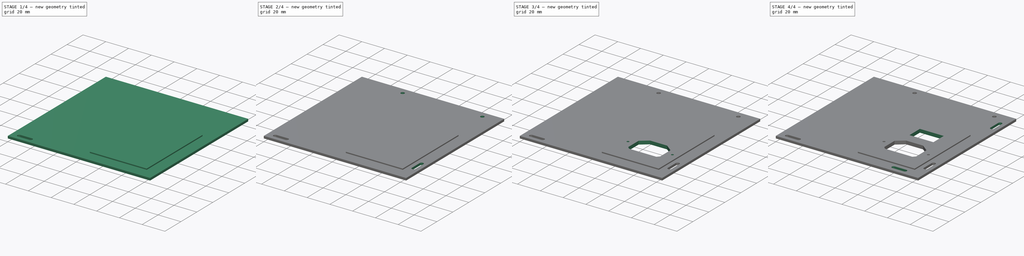
[diagram: build sequence overview — one tinted view per stage of 4, left to right]
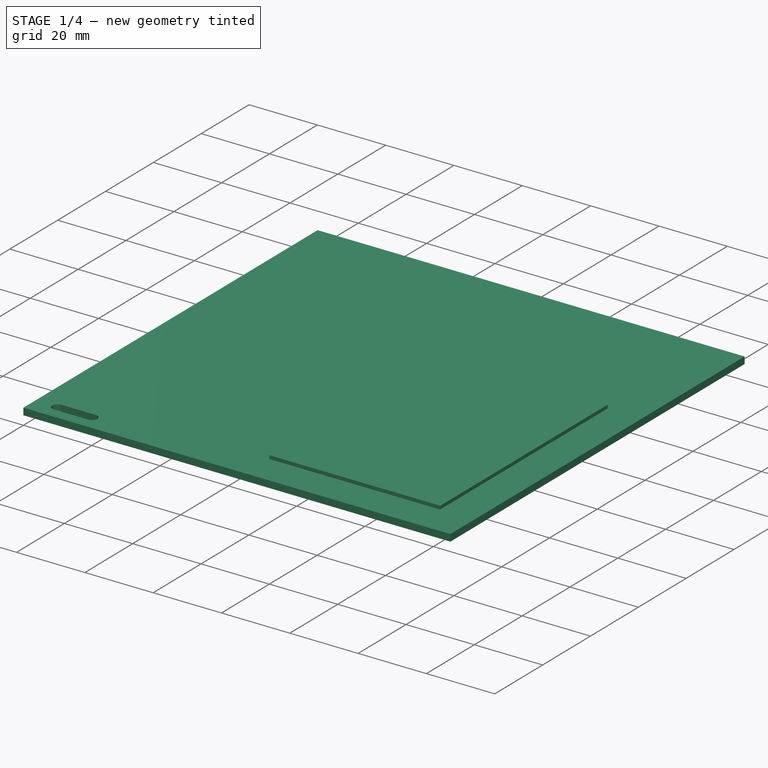
[diagram: stage 1 of 4 — iso view after this stage's code; geometry added in this stage tinted green]
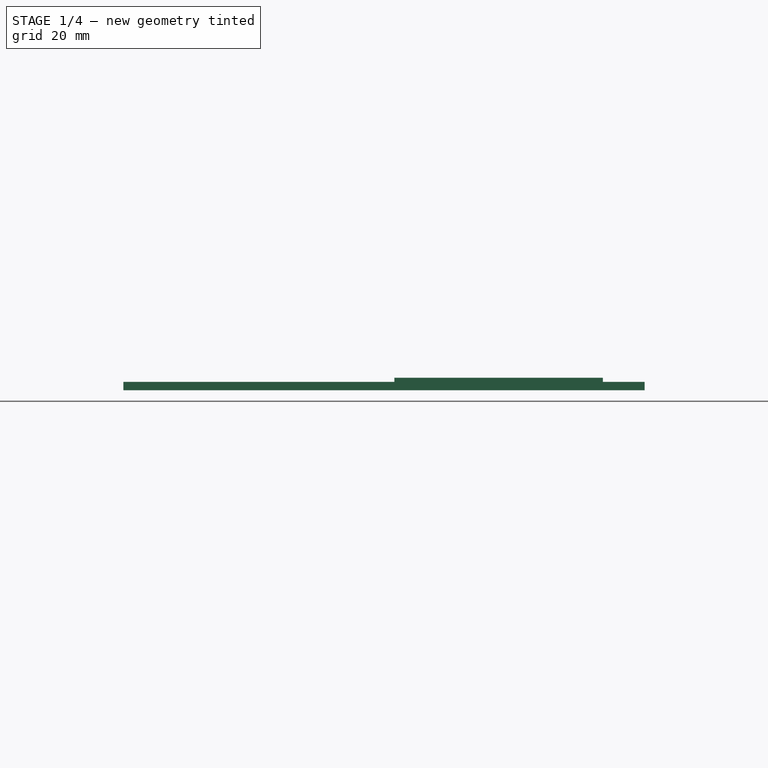
[diagram: stage 1 of 4 — front view after this stage's code; geometry added in this stage tinted green]
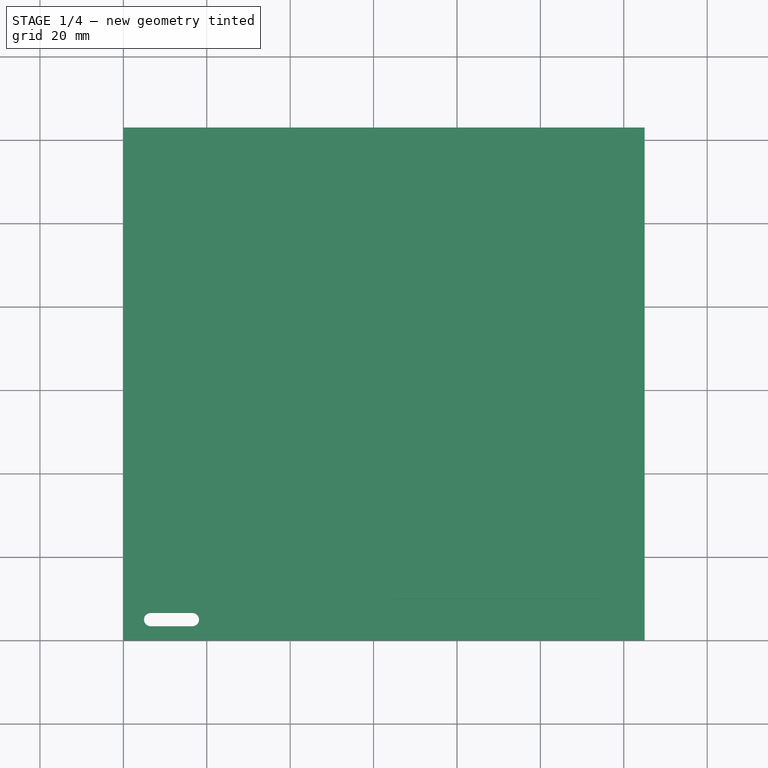
[diagram: stage 1 of 4 — top view after this stage's code; geometry added in this stage tinted green]
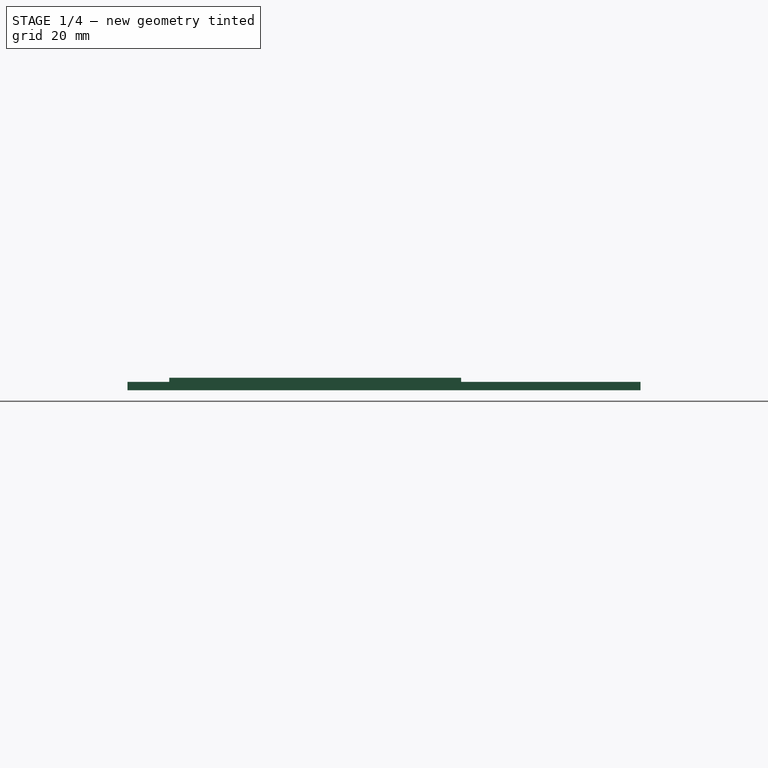
[diagram: stage 1 of 4 — right view after this stage's code; geometry added in this stage tinted green]
FCSTD DOCUMENT  (FreeCAD 0.17R13541 (Git))
Label: psBackPannel
License: All rights reserved
LicenseURL: http://en.wikipedia.org/wiki/All_rights_reserved
objects: Sketcher::SketchObject×12, PartDesign::Pocket×10, PartDesign::Pad×2, PartDesign::Body×1
note: 37 computed .brp shape members not serialized (recipe doc carries the construction recipe); baked Part::Feature solids carry a one-line shape summary decoded from their .brp

FEATURE [Sketcher::SketchObject] Sketch
  MapMode = 5
  Support = -> [XY_Plane]
  sketch-geometry (4):
    g0: LineSegment StartX=125 StartY=123 StartZ=0 EndX=0 EndY=123 EndZ=0
    g1: LineSegment StartX=0 StartY=123 StartZ=0 EndX=0 EndY=0 EndZ=0
    g2: LineSegment StartX=0 StartY=0 StartZ=0 EndX=125 EndY=0 EndZ=0
    g3: LineSegment StartX=125 StartY=0 StartZ=0 EndX=125 EndY=123 EndZ=0
  constraints (12):
    c: Coincident(g0,g1)
    c: Coincident(g1,g2)
    c: Coincident(g2,g3)
    c: Coincident(g3,g0)
    c: Horizontal(g0)
    c: Horizontal(g2)
    c: Vertical(g1)
    c: Vertical(g3)
    c: Distance(g0) = 125
    c: Distance(g1) = 123
    c: DistanceX(g1) = 0
    c: DistanceY(g1) = 0
FEATURE [PartDesign::Pad] Pad
  Length = 2
  Length2 = 100
  Profile = -> Sketch
  Type = 0
FEATURE [Sketcher::SketchObject] Sketch001
  MapMode = 5
  Support = -> [XY_Plane]
  sketch-geometry (4):
    g0: LineSegment StartX=115 StartY=10 StartZ=0 EndX=65 EndY=10 EndZ=0
    g1: LineSegment StartX=65 StartY=10 StartZ=0 EndX=65 EndY=80 EndZ=0
    g2: LineSegment StartX=65 StartY=80 StartZ=0 EndX=115 EndY=80 EndZ=0
    g3: LineSegment StartX=115 StartY=80 StartZ=0 EndX=115 EndY=10 EndZ=0
  constraints (12):
    c: Coincident(g0,g1)
    c: Coincident(g1,g2)
    c: Coincident(g2,g3)
    c: Coincident(g3,g0)
    c: Horizontal(g0)
    c: Horizontal(g2)
    c: Vertical(g1)
    c: Vertical(g3)
    c: Distance(g0) = 50
    c: Distance(g1) = 70
    c: DistanceX(g0) = 115
    c: DistanceY(g0) = 10
FEATURE [PartDesign::Pad] Pad001
  BaseFeature = -> Pad
  Length = 3
  Length2 = 100
  Profile = -> Sketch001
  Type = 0
FEATURE [Sketcher::SketchObject] Sketch002
  MapMode = 5
  Support = -> [XY_Plane]
  sketch-geometry (4):
    g0: ArcOfCircle CenterX=6.55 CenterY=5 CenterZ=0 NormalX=0 NormalY=0 NormalZ=1 AngleXU=0 Radius=1.6 StartAngle=1.5708 EndAngle=4.71239
    g1: ArcOfCircle CenterX=16.55 CenterY=5 CenterZ=0 NormalX=0 NormalY=0 NormalZ=1 AngleXU=0 Radius=1.6 StartAngle=4.71239 EndAngle=7.85398
    g2: LineSegment StartX=6.55 StartY=3.4 StartZ=0 EndX=16.55 EndY=3.4 EndZ=0
    g3: LineSegment StartX=6.55 StartY=6.6 StartZ=0 EndX=16.55 EndY=6.6 EndZ=0
  constraints (10):
    c: Tangent(g0,g3) = 1.5708
    c: Tangent(g0,g2) = -1.5708
    c: Tangent(g2,g1) = -1.5708
    c: Tangent(g3,g1) = 1.5708
    c: Horizontal(g2)
    c: Equal(g0,g1)
    c: Radius(g0) = 1.6
    c: DistanceX(g0) = 6.55
    c: DistanceY(g0) = 5
    c: Distance(g2) = 10
FEATURE [PartDesign::Pocket] Pocket
  BaseFeature = -> Pad001
  Length = 5
  Length2 = 100
  Profile = -> Sketch002
  Reversed = true
  Type = 1
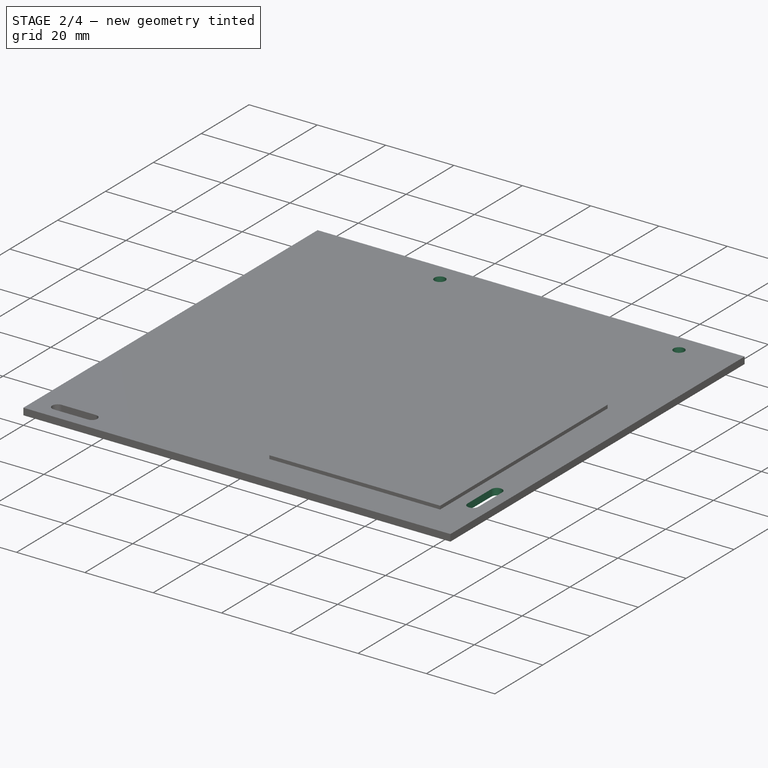
[diagram: stage 2 of 4 — iso view after this stage's code; geometry added in this stage tinted green]
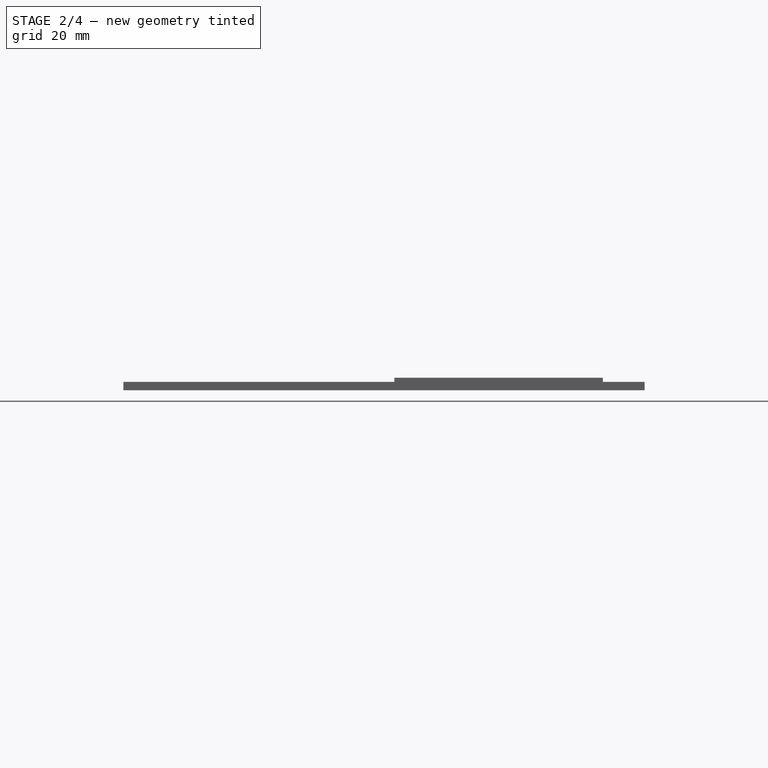
[diagram: stage 2 of 4 — front view after this stage's code; geometry added in this stage tinted green]
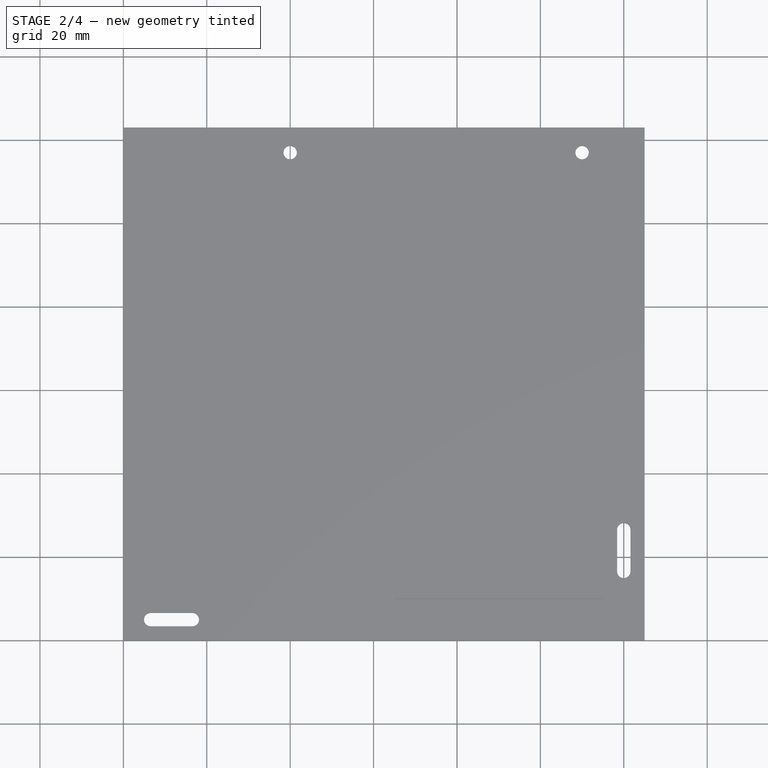
[diagram: stage 2 of 4 — top view after this stage's code; geometry added in this stage tinted green]
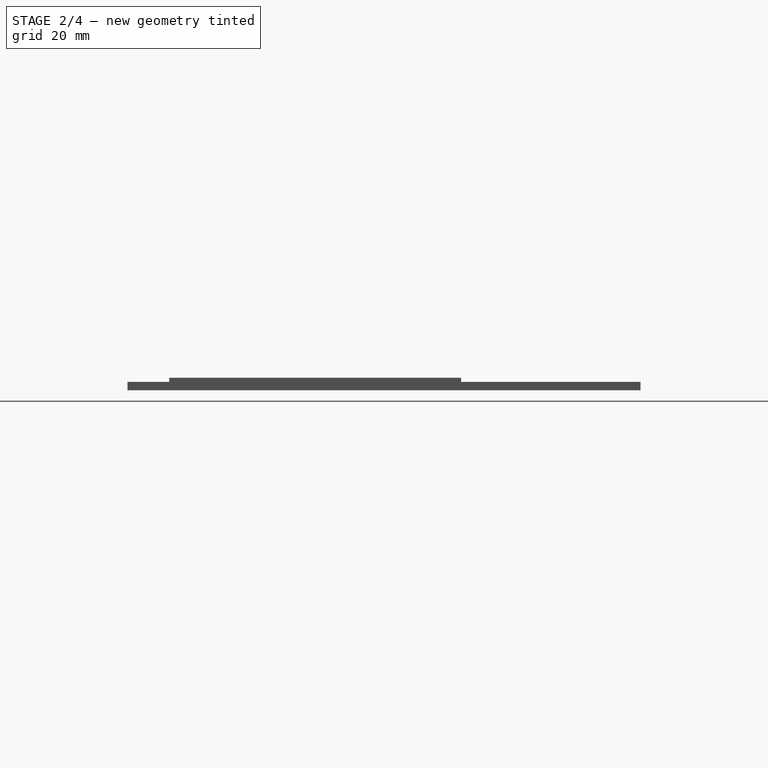
[diagram: stage 2 of 4 — right view after this stage's code; geometry added in this stage tinted green]
FEATURE [Sketcher::SketchObject] Sketch003
  MapMode = 5
  Support = -> [XY_Plane]
  sketch-geometry (4):
    g0: ArcOfCircle CenterX=120 CenterY=26.55 CenterZ=0 NormalX=0 NormalY=0 NormalZ=1 AngleXU=0 Radius=1.6 StartAngle=0 EndAngle=3.14159
    g1: ArcOfCircle CenterX=120 CenterY=16.55 CenterZ=0 NormalX=0 NormalY=0 NormalZ=1 AngleXU=0 Radius=1.6 StartAngle=3.14159 EndAngle=6.28319
    g2: LineSegment StartX=118.4 StartY=26.55 StartZ=0 EndX=118.4 EndY=16.55 EndZ=0
    g3: LineSegment StartX=121.6 StartY=26.55 StartZ=0 EndX=121.6 EndY=16.55 EndZ=0
  constraints (10):
    c: Tangent(g0,g3) = 1.5708
    c: Tangent(g0,g2) = -1.5708
    c: Tangent(g2,g1) = -1.5708
    c: Tangent(g3,g1) = 1.5708
    c: Vertical(g2)
    c: Equal(g0,g1)
    c: Radius(g0) = 1.6
    c: DistanceX(g1) = 120
    c: DistanceY(g1) = 16.55
    c: Distance(g2) = 10
FEATURE [PartDesign::Pocket] Pocket001
  BaseFeature = -> Pocket
  Length = 5
  Length2 = 100
  Profile = -> Sketch003
  Reversed = true
  Type = 1
FEATURE [Sketcher::SketchObject] Sketch004
  MapMode = 5
  Support = -> [XY_Plane]
  sketch-geometry (1):
    g0: Circle CenterX=110 CenterY=117 CenterZ=0 NormalX=0 NormalY=0 NormalZ=1 AngleXU=0 Radius=1.6
  constraints (3):
    c: Radius(g0) = 1.6
    c: DistanceX(g0) = 110
    c: DistanceY(g0) = 117
FEATURE [PartDesign::Pocket] Pocket002
  BaseFeature = -> Pocket001
  Length = 5
  Length2 = 100
  Profile = -> Sketch004
  Reversed = true
  Type = 1
FEATURE [Sketcher::SketchObject] Sketch005
  MapMode = 5
  Support = -> [XY_Plane]
  sketch-geometry (1):
    g0: Circle CenterX=40 CenterY=117 CenterZ=0 NormalX=0 NormalY=0 NormalZ=1 AngleXU=0 Radius=1.6
  constraints (3):
    c: Radius(g0) = 1.6
    c: DistanceX(g0) = 40
    c: DistanceY(g0) = 117
FEATURE [PartDesign::Pocket] Pocket003
  BaseFeature = -> Pocket002
  Length = 5
  Length2 = 100
  Profile = -> Sketch005
  Reversed = true
  Type = 1
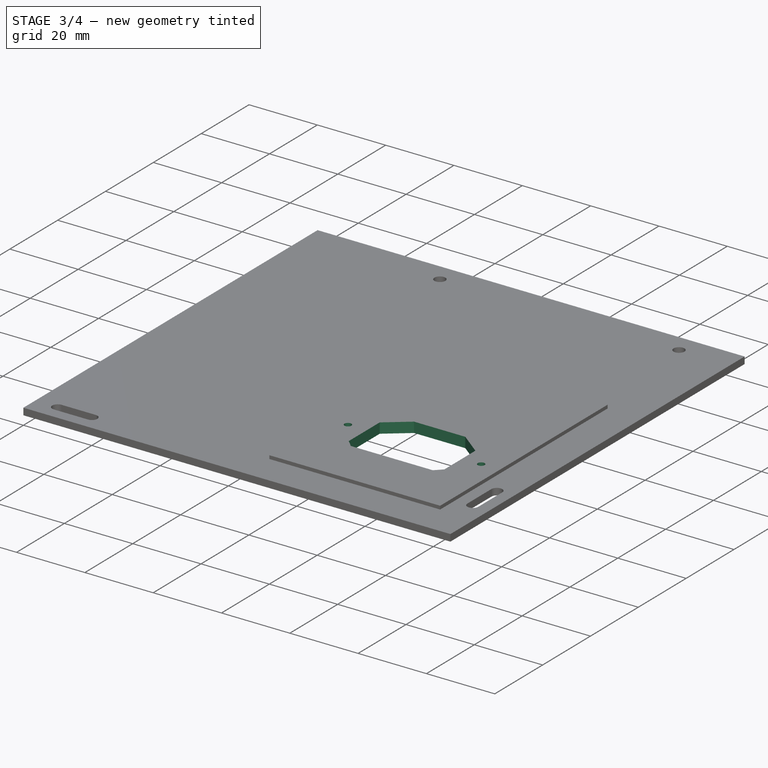
[diagram: stage 3 of 4 — iso view after this stage's code; geometry added in this stage tinted green]
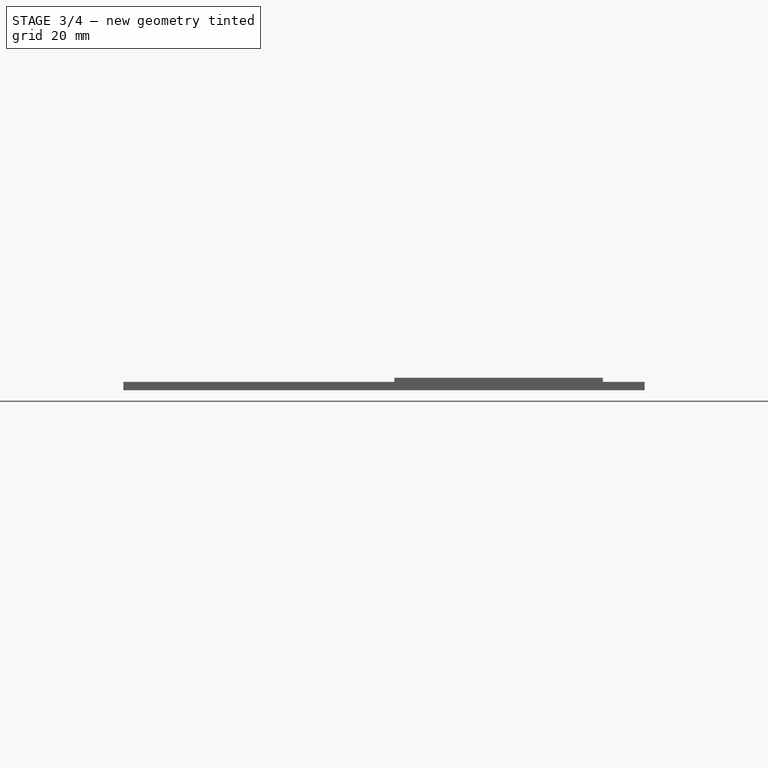
[diagram: stage 3 of 4 — front view after this stage's code; geometry added in this stage tinted green]
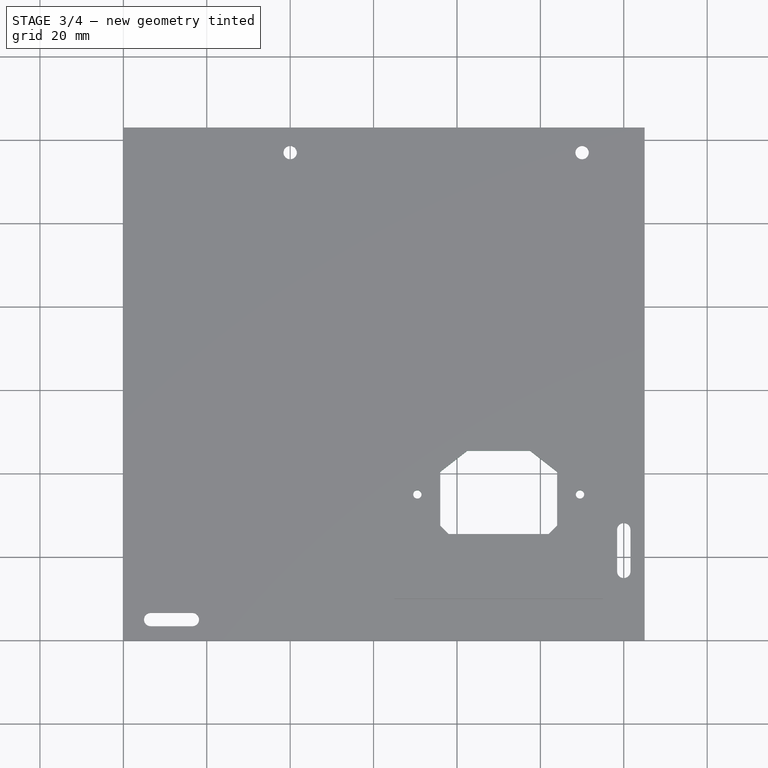
[diagram: stage 3 of 4 — top view after this stage's code; geometry added in this stage tinted green]
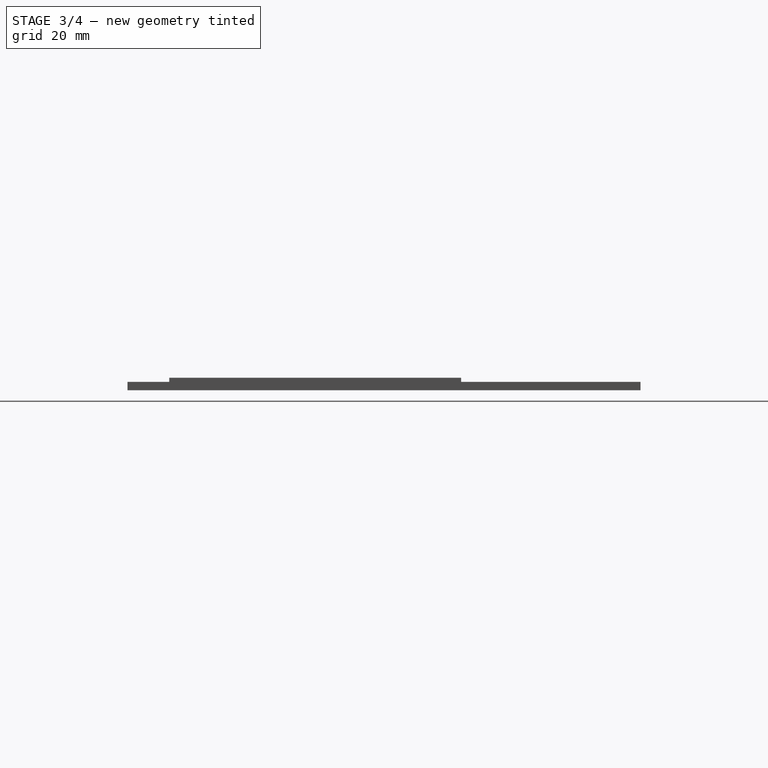
[diagram: stage 3 of 4 — right view after this stage's code; geometry added in this stage tinted green]
FEATURE [Sketcher::SketchObject] Sketch006
  MapMode = 5
  Support = -> [XY_Plane]
  sketch-geometry (29):
    g0: LineSegment [constr] StartX=65 StartY=10 StartZ=0 EndX=115 EndY=10 EndZ=0
    g1: LineSegment [constr] StartX=115 StartY=10 StartZ=0 EndX=115 EndY=60 EndZ=0
    g2: LineSegment [constr] StartX=115 StartY=60 StartZ=0 EndX=65 EndY=60 EndZ=0
    g3: LineSegment [constr] StartX=65 StartY=60 StartZ=0 EndX=65 EndY=10 EndZ=0
    g4: LineSegment [constr] StartX=65 StartY=35 StartZ=0 EndX=115 EndY=35 EndZ=0
    g5: LineSegment [constr] StartX=90 StartY=60 StartZ=0 EndX=90 EndY=10 EndZ=0
    g6: LineSegment [constr] StartX=65 StartY=25.5 StartZ=0 EndX=115 EndY=25.5 EndZ=0
    g7: LineSegment [constr] StartX=65 StartY=45.5 StartZ=0 EndX=115 EndY=45.5 EndZ=0
    g8: LineSegment [constr] StartX=76 StartY=45.5 StartZ=0 EndX=76 EndY=25.5 EndZ=0
    g9: LineSegment [constr] StartX=104 StartY=45.5 StartZ=0 EndX=104 EndY=25.5 EndZ=0
    g10: LineSegment [constr] StartX=82.5 StartY=45.5 StartZ=0 EndX=82.5 EndY=25.5 EndZ=0
    g11: LineSegment [constr] StartX=97.5 StartY=25.5 StartZ=0 EndX=97.5 EndY=45.5 EndZ=0
    g12: LineSegment [constr] StartX=65 StartY=40.5 StartZ=0 EndX=115 EndY=40.5 EndZ=0
    g13: LineSegment StartX=76 StartY=40.4337 StartZ=0 EndX=82.5 EndY=45.5 EndZ=0
    g14: LineSegment StartX=82.5 StartY=45.5 StartZ=0 EndX=97.5 EndY=45.5 EndZ=0
    g15: LineSegment StartX=97.5 StartY=45.5 StartZ=0 EndX=104 EndY=40.4359 EndZ=0
    g16: LineSegment [constr] StartX=76 StartY=25.5 StartZ=0 EndX=78 EndY=25.5 EndZ=0
    g17: LineSegment [constr] StartX=78 StartY=25.5 StartZ=0 EndX=78 EndY=27.5 EndZ=0
    g18: LineSegment [constr] StartX=78 StartY=27.5 StartZ=0 EndX=76 EndY=27.5 EndZ=0
    g19: LineSegment [constr] StartX=76 StartY=27.5 StartZ=0 EndX=76 EndY=25.5 EndZ=0
    g20: LineSegment [constr] StartX=104 StartY=25.5 StartZ=0 EndX=102 EndY=25.5 EndZ=0
    g21: LineSegment [constr] StartX=102 StartY=25.5 StartZ=0 EndX=102 EndY=27.5 EndZ=0
    g22: LineSegment [constr] StartX=102 StartY=27.5 StartZ=0 EndX=104 EndY=27.5 EndZ=0
    g23: LineSegment [constr] StartX=104 StartY=27.5 StartZ=0 EndX=104 EndY=25.5 EndZ=0
    g24: LineSegment StartX=76 StartY=40.4337 StartZ=0 EndX=76 EndY=27.5 EndZ=0
    g25: LineSegment StartX=104 StartY=27.5 StartZ=0 EndX=102 EndY=25.5 EndZ=0
    g26: LineSegment StartX=104 StartY=40.4359 StartZ=0 EndX=104 EndY=27.5 EndZ=0
    g27: LineSegment StartX=102 StartY=25.5 StartZ=0 EndX=78 EndY=25.5 EndZ=0
    g28: LineSegment StartX=76 StartY=27.5 StartZ=0 EndX=78 EndY=25.5 EndZ=0
  constraints (86):
    c: Coincident(g0,g1)
    c: Coincident(g1,g2)
    c: Coincident(g2,g3)
    c: Coincident(g3,g0)
    c: Horizontal(g0)
    c: Horizontal(g2)
    c: Vertical(g1)
    c: Vertical(g3)
    c: Distance(g0) = 50
    c: Distance(g1) = 50
    c: DistanceX(g0) = 115
    c: DistanceY(g0) = 10
    c: Horizontal(g4)
    c: DistanceX(g4) = 115
    c: DistanceY(g4) = 35
    c: Vertical(g5)
    c: DistanceX(g5) = 90
    c: DistanceY(g5) = 10
    c: Distance(g5) = 50
    c: Horizontal(g6)
    c: Distance(g6) = 50
    c: DistanceX(g6) = 115
    c: DistanceY(g6) = 25.5
    c: Horizontal(g7)
    c: Distance(g7) = 50
    c: DistanceX(g7) = 115
    c: DistanceY(g7) = 45.5
    c: Vertical(g8)
    c: DistanceX(g8) = 76
    c: DistanceY(g8) = 25.5
    c: DistanceY(g8) = 45.5
    c: Vertical(g9)
    c: DistanceX(g9) = 104
    c: DistanceY(g9) = 25.5
    c: Distance(g9) = 20
    c: Vertical(g10)
    c: DistanceX(g10) = 82.5
    c: DistanceY(g10) = 25.5
    c: Distance(g10) = 20
    c: Vertical(g11)
    c: DistanceX(g11) = 97.5
    c: DistanceY(g11) = 25.5
    c: Distance(g11) = 20
    c: Horizontal(g12)
    c: Distance(g12) = 50
    c: DistanceX(g12) = 65
    c: DistanceY(g12) = 40.5
    c: PointOnObject(g13,g8)
    c: Coincident(g14,g10)
    c: Coincident(g14,g11)
    c: PointOnObject(g15,g9)
    c: Coincident(g15,g11)
    c: Coincident(g16,g17)
    c: Coincident(g17,g18)
    c: Coincident(g18,g19)
    c: Coincident(g19,g16)
    c: Horizontal(g16)
    c: Horizontal(g18)
    c: Vertical(g17)
    c: Vertical(g19)
    c: Distance(g18) = 2
    c: Distance(g17) = 2
    c: Coincident(g20,g21)
    c: Coincident(g21,g22)
    c: Coincident(g22,g23)
    c: Coincident(g23,g20)
    c: Horizontal(g20)
    c: Horizontal(g22)
    c: Vertical(g21)
    c: Vertical(g23)
    c: Distance(g23) = 2
    c: Distance(g20) = 2
    c: DistanceX(g16) = 76
    c: DistanceY(g16) = 25.5
    c: DistanceX(g20) = 104
    c: DistanceY(g20) = 25.5
    c: Coincident(g24,g13)
    c: Coincident(g24,g18)
    c: Coincident(g25,g22)
    c: Coincident(g25,g20)
    c: Coincident(g26,g15)
    c: Coincident(g26,g22)
    c: Coincident(g27,g20)
    c: Coincident(g27,g16)
    c: Coincident(g28,g18)
    c: Coincident(g28,g16)
FEATURE [Sketcher::SketchObject] Sketch007
  MapMode = 5
  Support = -> [XY_Plane]
  sketch-geometry (7):
    g0: LineSegment [constr] StartX=65 StartY=10 StartZ=0 EndX=115 EndY=10 EndZ=0
    g1: LineSegment [constr] StartX=115 StartY=10 StartZ=0 EndX=115 EndY=60 EndZ=0
    g2: LineSegment [constr] StartX=115 StartY=60 StartZ=0 EndX=65 EndY=60 EndZ=0
    g3: LineSegment [constr] StartX=65 StartY=60 StartZ=0 EndX=65 EndY=10 EndZ=0
    g4: LineSegment [constr] StartX=65 StartY=35 StartZ=0 EndX=115 EndY=35 EndZ=0
    g5: LineSegment [constr] StartX=90 StartY=60 StartZ=0 EndX=90 EndY=10 EndZ=0
    g6: Circle CenterX=70.5 CenterY=35 CenterZ=0 NormalX=0 NormalY=0 NormalZ=1 AngleXU=0 Radius=1
  constraints (22):
    c: Coincident(g0,g1)
    c: Coincident(g1,g2)
    c: Coincident(g2,g3)
    c: Coincident(g3,g0)
    c: Horizontal(g0)
    c: Horizontal(g2)
    c: Vertical(g1)
    c: Vertical(g3)
    c: Distance(g0) = 50
    c: Distance(g1) = 50
    c: DistanceX(g0) = 115
    c: DistanceY(g0) = 10
    c: Horizontal(g4)
    c: DistanceX(g4) = 115
    c: DistanceY(g4) = 35
    c: Vertical(g5)
    c: DistanceX(g5) = 90
    c: DistanceY(g5) = 10
    c: Distance(g5) = 50
    c: DistanceX(g6) = 70.5
    c: DistanceY(g6) = 35
    c: Radius(g6) = 1
FEATURE [Sketcher::SketchObject] Sketch008
  MapMode = 5
  Support = -> [XY_Plane]
  sketch-geometry (7):
    g0: LineSegment [constr] StartX=65 StartY=10 StartZ=0 EndX=115 EndY=10 EndZ=0
    g1: LineSegment [constr] StartX=115 StartY=10 StartZ=0 EndX=115 EndY=60 EndZ=0
    g2: LineSegment [constr] StartX=115 StartY=60 StartZ=0 EndX=65 EndY=60 EndZ=0
    g3: LineSegment [constr] StartX=65 StartY=60 StartZ=0 EndX=65 EndY=10 EndZ=0
    g4: LineSegment [constr] StartX=65 StartY=35 StartZ=0 EndX=115 EndY=35 EndZ=0
    g5: LineSegment [constr] StartX=90 StartY=60 StartZ=0 EndX=90 EndY=10 EndZ=0
    g6: Circle CenterX=109.5 CenterY=35 CenterZ=0 NormalX=0 NormalY=0 NormalZ=1 AngleXU=0 Radius=1
  constraints (22):
    c: Coincident(g0,g1)
    c: Coincident(g1,g2)
    c: Coincident(g2,g3)
    c: Coincident(g3,g0)
    c: Horizontal(g0)
    c: Horizontal(g2)
    c: Vertical(g1)
    c: Vertical(g3)
    c: Distance(g0) = 50
    c: Distance(g1) = 50
    c: DistanceX(g0) = 115
    c: DistanceY(g0) = 10
    c: Horizontal(g4)
    c: DistanceX(g4) = 115
    c: DistanceY(g4) = 35
    c: Vertical(g5)
    c: DistanceX(g5) = 90
    c: DistanceY(g5) = 10
    c: Distance(g5) = 50
    c: DistanceX(g6) = 109.5
    c: DistanceY(g6) = 35
    c: Radius(g6) = 1
FEATURE [PartDesign::Pocket] Pocket004
  BaseFeature = -> Pocket003
  Length = 5
  Length2 = 100
  Profile = -> Sketch006
  Reversed = true
  Type = 1
FEATURE [PartDesign::Pocket] Pocket005
  BaseFeature = -> Pocket004
  Length = 5
  Length2 = 100
  Profile = -> Sketch007
  Reversed = true
  Type = 1
FEATURE [PartDesign::Pocket] Pocket006
  BaseFeature = -> Pocket005
  Length = 5
  Length2 = 100
  Profile = -> Sketch008
  Reversed = true
  Type = 1
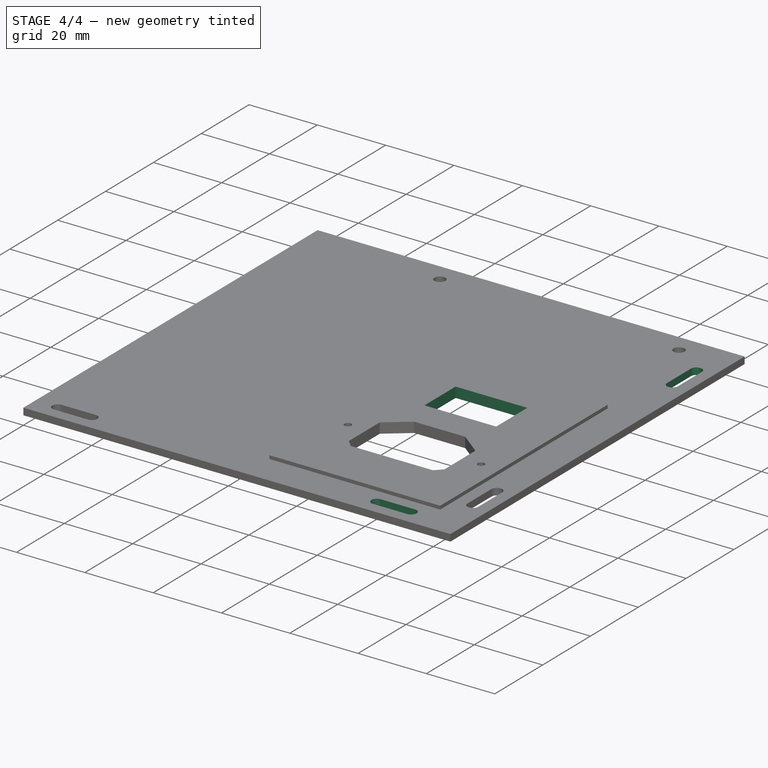
[diagram: stage 4 of 4 — iso view after this stage's code; geometry added in this stage tinted green]
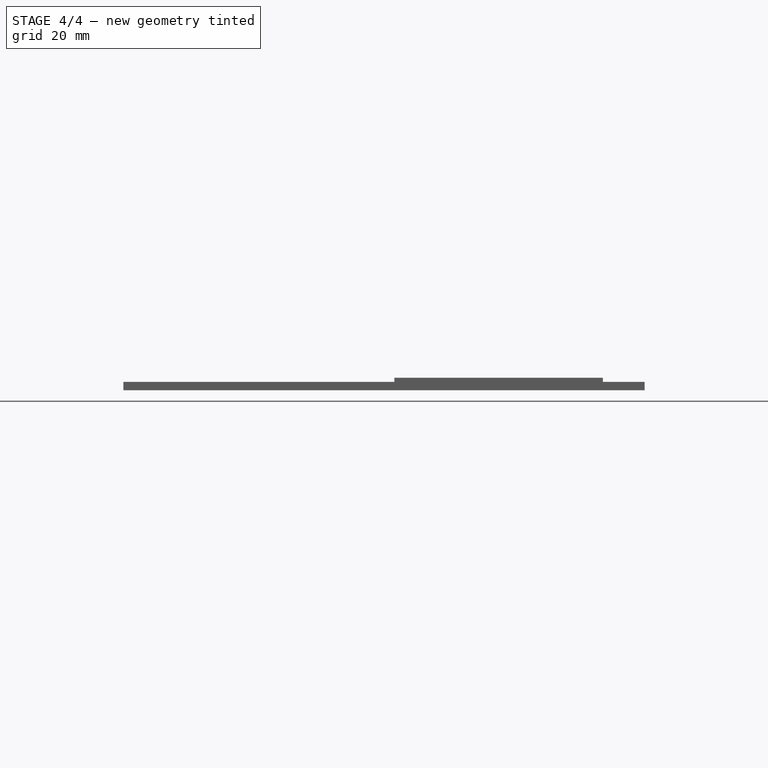
[diagram: stage 4 of 4 — front view after this stage's code; geometry added in this stage tinted green]
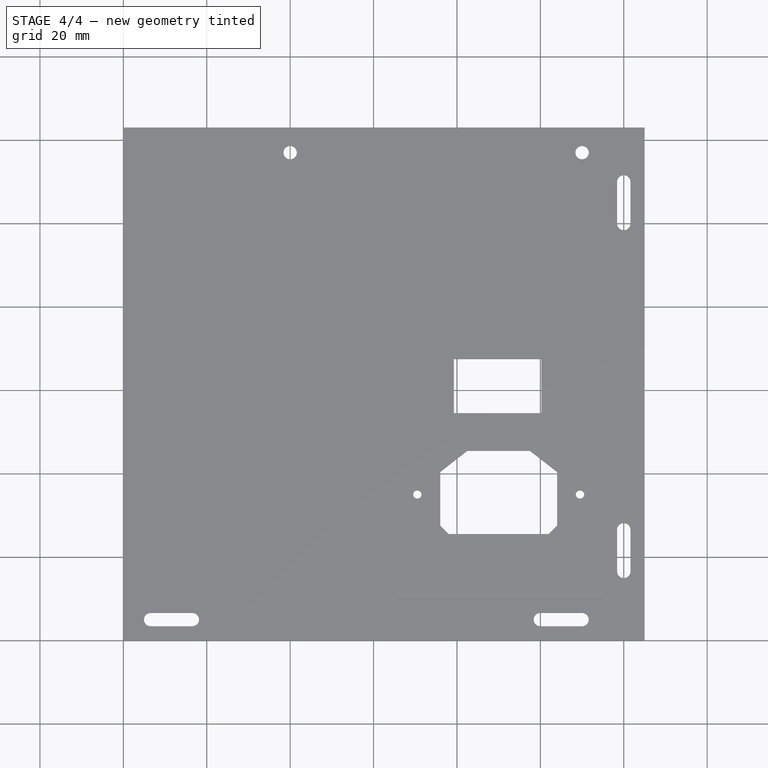
[diagram: stage 4 of 4 — top view after this stage's code; geometry added in this stage tinted green]
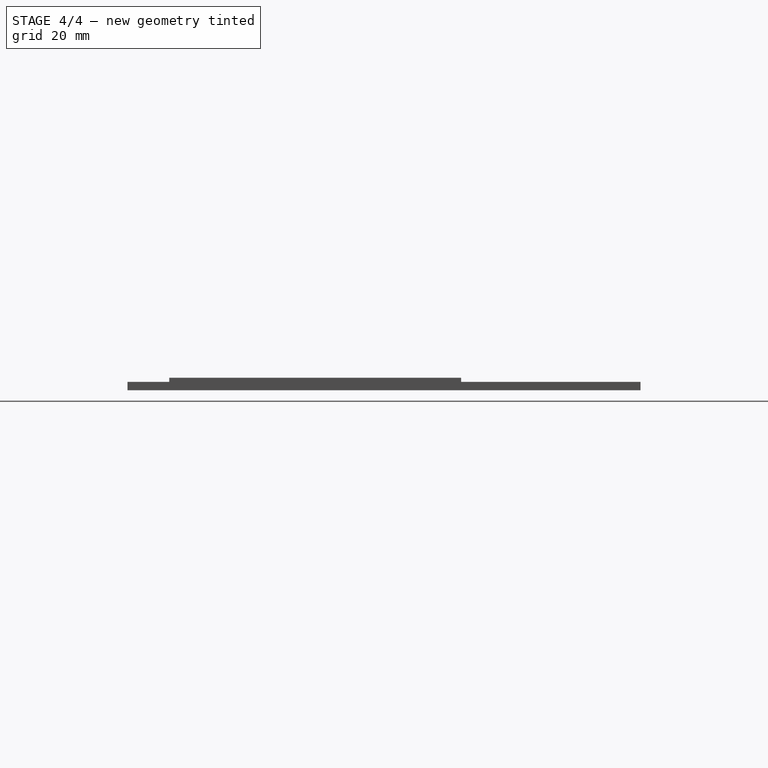
[diagram: stage 4 of 4 — right view after this stage's code; geometry added in this stage tinted green]
FEATURE [Sketcher::SketchObject] Sketch009
  MapMode = 5
  Support = -> [XY_Plane]
  sketch-geometry (10):
    g0: LineSegment [constr] StartX=65 StartY=10 StartZ=0 EndX=115 EndY=10 EndZ=0
    g1: LineSegment [constr] StartX=115 StartY=10 StartZ=0 EndX=115 EndY=60 EndZ=0
    g2: LineSegment [constr] StartX=115 StartY=60 StartZ=0 EndX=65 EndY=60 EndZ=0
    g3: LineSegment [constr] StartX=65 StartY=60 StartZ=0 EndX=65 EndY=10 EndZ=0
    g4: LineSegment [constr] StartX=65 StartY=35 StartZ=0 EndX=115 EndY=35 EndZ=0
    g5: LineSegment [constr] StartX=90 StartY=60 StartZ=0 EndX=90 EndY=10 EndZ=0
    g6: LineSegment StartX=79.25 StartY=67.5 StartZ=0 EndX=100.25 EndY=67.5 EndZ=0
    g7: LineSegment StartX=100.25 StartY=67.5 StartZ=0 EndX=100.25 EndY=54.5 EndZ=0
    g8: LineSegment StartX=100.25 StartY=54.5 StartZ=0 EndX=79.25 EndY=54.5 EndZ=0
    g9: LineSegment StartX=79.25 StartY=54.5 StartZ=0 EndX=79.25 EndY=67.5 EndZ=0
  constraints (31):
    c: Coincident(g0,g1)
    c: Coincident(g1,g2)
    c: Coincident(g2,g3)
    c: Coincident(g3,g0)
    c: Horizontal(g0)
    c: Horizontal(g2)
    c: Vertical(g1)
    c: Vertical(g3)
    c: Distance(g0) = 50
    c: Distance(g1) = 50
    c: DistanceX(g0) = 115
    c: DistanceY(g0) = 10
    c: Horizontal(g4)
    c: DistanceX(g4) = 115
    c: DistanceY(g4) = 35
    c: Vertical(g5)
    c: DistanceX(g5) = 90
    c: DistanceY(g5) = 10
    c: Distance(g5) = 50
    c: Coincident(g6,g7)
    c: Coincident(g7,g8)
    c: Coincident(g8,g9)
    c: Coincident(g9,g6)
    c: Horizontal(g6)
    c: Horizontal(g8)
    c: Vertical(g7)
    c: Vertical(g9)
    c: Distance(g9) = 13
    c: Distance(g8) = 21
    c: DistanceX(g8) = 79.25
    c: DistanceY(g8) = 54.5
FEATURE [PartDesign::Pocket] Pocket007
  BaseFeature = -> Pocket006
  Length = 5
  Length2 = 100
  Profile = -> Sketch009
  Reversed = true
  Type = 1
FEATURE [Sketcher::SketchObject] Sketch010
  MapMode = 5
  Support = -> [XY_Plane]
  sketch-geometry (4):
    g0: ArcOfCircle CenterX=100 CenterY=5 CenterZ=0 NormalX=0 NormalY=0 NormalZ=1 AngleXU=0 Radius=1.6 StartAngle=1.5708 EndAngle=4.71239
    g1: ArcOfCircle CenterX=110 CenterY=5 CenterZ=0 NormalX=0 NormalY=0 NormalZ=1 AngleXU=0 Radius=1.6 StartAngle=4.71239 EndAngle=7.85398
    g2: LineSegment StartX=100 StartY=3.4 StartZ=0 EndX=110 EndY=3.4 EndZ=0
    g3: LineSegment StartX=100 StartY=6.6 StartZ=0 EndX=110 EndY=6.6 EndZ=0
  constraints (10):
    c: Tangent(g0,g3) = 1.5708
    c: Tangent(g0,g2) = -1.5708
    c: Tangent(g2,g1) = -1.5708
    c: Tangent(g3,g1) = 1.5708
    c: Horizontal(g2)
    c: Equal(g0,g1)
    c: Radius(g0) = 1.6
    c: DistanceX(g0) = 100
    c: DistanceY(g0) = 5
    c: Distance(g2) = 10
FEATURE [PartDesign::Pocket] Pocket008
  BaseFeature = -> Pocket007
  Length = 5
  Length2 = 100
  Profile = -> Sketch010
  Reversed = true
  Type = 1
FEATURE [Sketcher::SketchObject] Sketch011
  MapMode = 5
  Support = -> [XY_Plane]
  sketch-geometry (4):
    g0: ArcOfCircle CenterX=120 CenterY=110 CenterZ=0 NormalX=0 NormalY=0 NormalZ=1 AngleXU=0 Radius=1.6 StartAngle=0 EndAngle=3.14159
    g1: ArcOfCircle CenterX=120 CenterY=100 CenterZ=0 NormalX=0 NormalY=0 NormalZ=1 AngleXU=0 Radius=1.6 StartAngle=3.14159 EndAngle=6.28319
    g2: LineSegment StartX=118.4 StartY=110 StartZ=0 EndX=118.4 EndY=100 EndZ=0
    g3: LineSegment StartX=121.6 StartY=110 StartZ=0 EndX=121.6 EndY=100 EndZ=0
  constraints (10):
    c: Tangent(g0,g3) = 1.5708
    c: Tangent(g0,g2) = -1.5708
    c: Tangent(g2,g1) = -1.5708
    c: Tangent(g3,g1) = 1.5708
    c: Vertical(g2)
    c: Equal(g0,g1)
    c: Radius(g0) = 1.6
    c: DistanceX(g1) = 120
    c: DistanceY(g1) = 100
    c: Distance(g2) = 10
FEATURE [PartDesign::Pocket] Pocket009
  BaseFeature = -> Pocket008
  Length = 5
  Length2 = 100
  Profile = -> Sketch011
  Reversed = true
  Type = 1
FEATURE [PartDesign::Body] Body
  Group = -> [Sketch,Pad,Sketch001,Pad001,Sketch002,Pocket,Sketch003,Pocket001,Sketch004,Pocket002,Sketch005,Pocket003,Sketch006,Sketch007,Sketch008,Pocket004,Pocket005,Pocket006,Sketch009,Pocket007,Sketch010,Pocket008,Sketch011,Pocket009]
  Origin = -> Origin
  Tip = -> Pocket009
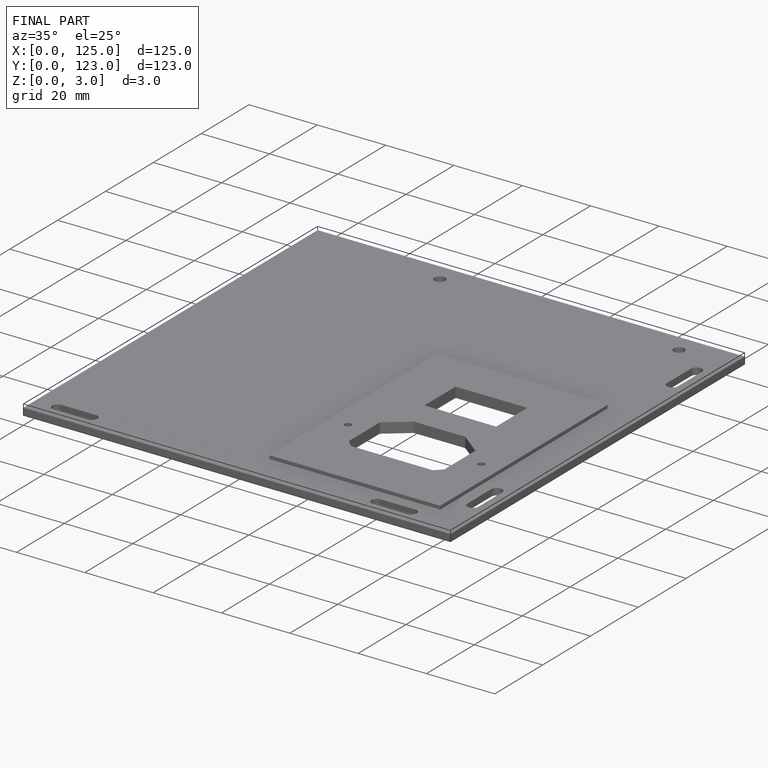
[diagram: finished part — iso view with bounding-box wireframe]
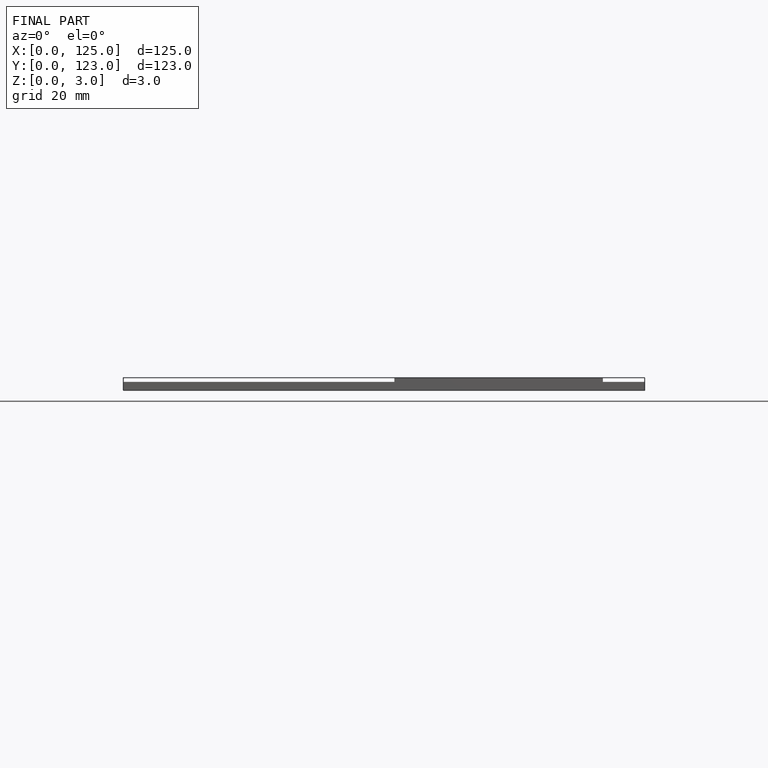
[diagram: finished part — front view with bounding-box wireframe]
